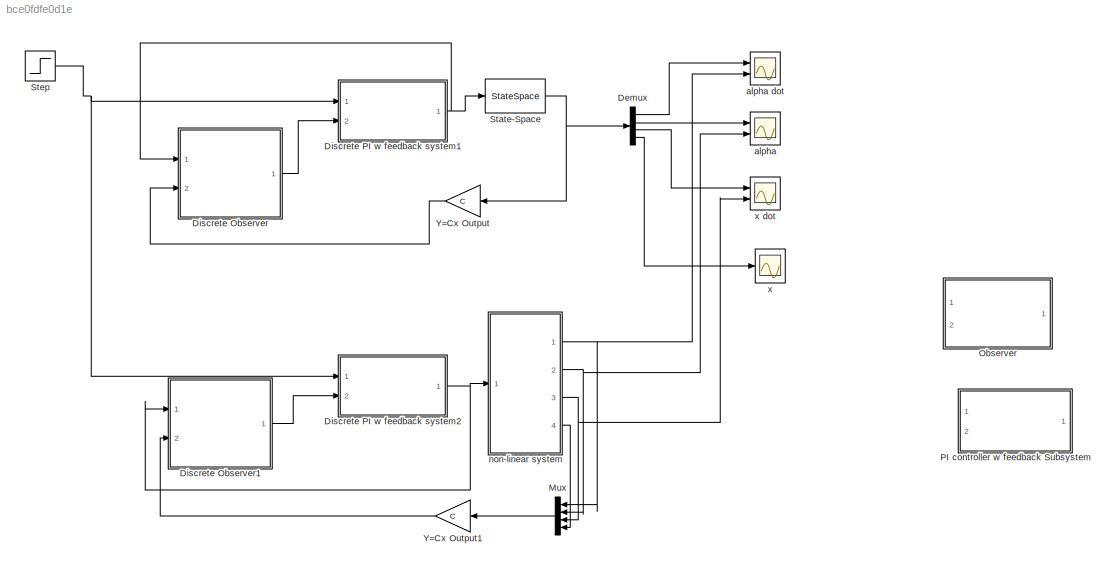
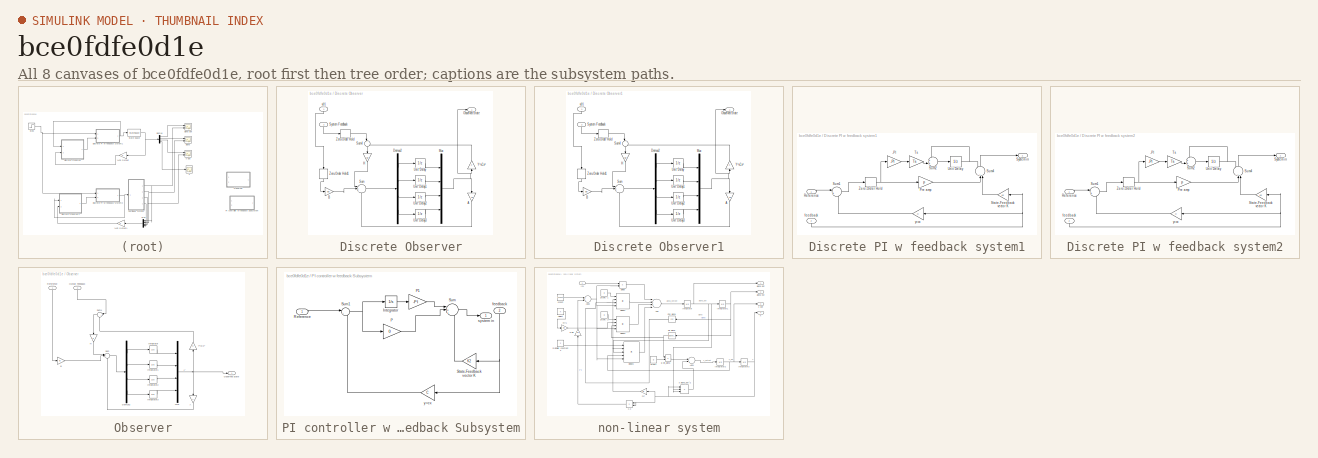
[diagram: thumbnail index - all 8 canvases of the model, root first then tree order]
MODEL slx_bce0fdfe0d1e
KIND model
BLOCK [Demux] Demux
  DisplayOption = bar
  Ports = [1, 4]
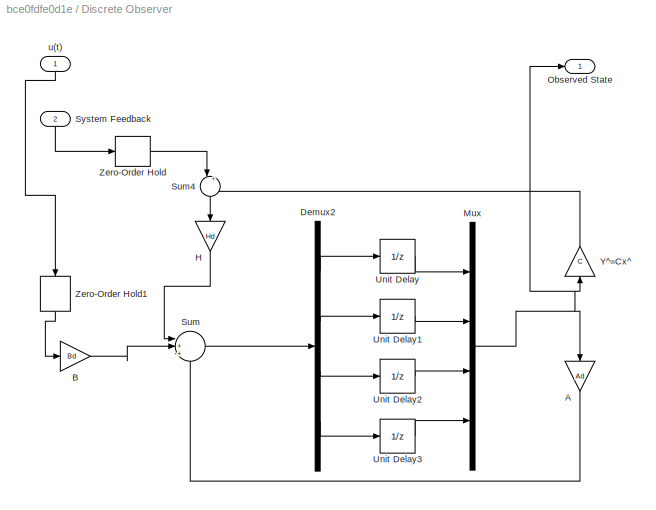
BLOCK [SubSystem] Discrete Observer
  FunctionWithSeparateData = off
  MaskHideContents = off
  MinAlgLoopOccurrences = off
  Opaque = off
  Ports = [2, 1]
  PropExecContextOutsideSubsystem = off
  RTWSystemCode = Auto
  RequestExecContextInheritance = off
BLOCK [Gain] Discrete Observer/A 
  Gain = Ad
  Multiplication = Matrix(K*u)
  OutDataTypeStr = Inherit: Inherit via internal rule
  ParamDataTypeStr = Inherit: Inherit via internal rule
  SaturateOnIntegerOverflow = off
BLOCK [Gain] Discrete Observer/B
  Gain = Bd
  Multiplication = Matrix(K*u) (u vector)
  OutDataTypeStr = Inherit: Inherit via internal rule
  ParamDataTypeStr = Inherit: Inherit via internal rule
  SaturateOnIntegerOverflow = off
BLOCK [Demux] Discrete Observer/Demux2
  DisplayOption = bar
  Ports = [1, 4]
BLOCK [Gain] Discrete Observer/H
  Gain = Hd
  Multiplication = Matrix(K*u) (u vector)
  OutDataTypeStr = Inherit: Inherit via internal rule
  ParamDataTypeStr = Inherit: Inherit via internal rule
  SaturateOnIntegerOverflow = off
BLOCK [Mux] Discrete Observer/Mux
  DisplayOption = bar
  Ports = [4, 1]
BLOCK [Outport] Discrete Observer/Observed State
  IconDisplay = Port number
BLOCK [Sum] Discrete Observer/Sum
  IconShape = round
  InputSameDT = off
  Inputs = |+++
  OutDataTypeStr = Inherit: Inherit via internal rule
  Ports = [3, 1]
  SaturateOnIntegerOverflow = off
BLOCK [Sum] Discrete Observer/Sum4
  IconShape = round
  InputSameDT = off
  Inputs = |+-
  OutDataTypeStr = Inherit: Inherit via internal rule
  Ports = [2, 1]
  SaturateOnIntegerOverflow = off
BLOCK [Inport] Discrete Observer/System Feedback
  IconDisplay = Port number
  Port = 2
BLOCK [UnitDelay] Discrete Observer/Unit Delay
  InputProcessing = Elements as channels (sample based)
  SampleTime = -1
BLOCK [UnitDelay] Discrete Observer/Unit Delay1
  InputProcessing = Elements as channels (sample based)
  SampleTime = -1
BLOCK [UnitDelay] Discrete Observer/Unit Delay2
  InputProcessing = Elements as channels (sample based)
  SampleTime = -1
BLOCK [UnitDelay] Discrete Observer/Unit Delay3
  InputProcessing = Elements as channels (sample based)
  SampleTime = -1
BLOCK [Gain] Discrete Observer/Y^=Cx^
  Gain = C
  Multiplication = Matrix(K*u)
  OutDataTypeStr = Inherit: Inherit via internal rule
  ParamDataTypeStr = Inherit: Inherit via internal rule
  SaturateOnIntegerOverflow = off
BLOCK [ZeroOrderHold] Discrete Observer/Zero-Order Hold
  SampleTime = Ts
BLOCK [ZeroOrderHold] Discrete Observer/Zero-Order Hold1
  SampleTime = Ts
BLOCK [Inport] Discrete Observer/u(t)
  IconDisplay = Port number
BLOCK [SubSystem] Discrete Observer1
  FunctionWithSeparateData = off
  MaskHideContents = off
  MinAlgLoopOccurrences = off
  Opaque = off
  Ports = [2, 1]
  PropExecContextOutsideSubsystem = off
  RTWSystemCode = Auto
  RequestExecContextInheritance = off
BLOCK [Gain] Discrete Observer1/A 
  Gain = Ad
  Multiplication = Matrix(K*u)
  OutDataTypeStr = Inherit: Inherit via internal rule
  ParamDataTypeStr = Inherit: Inherit via internal rule
  SaturateOnIntegerOverflow = off
BLOCK [Gain] Discrete Observer1/B
  Gain = Bd
  Multiplication = Matrix(K*u) (u vector)
  OutDataTypeStr = Inherit: Inherit via internal rule
  ParamDataTypeStr = Inherit: Inherit via internal rule
  SaturateOnIntegerOverflow = off
BLOCK [Demux] Discrete Observer1/Demux2
  DisplayOption = bar
  Ports = [1, 4]
BLOCK [Gain] Discrete Observer1/H
  Gain = Hd
  Multiplication = Matrix(K*u) (u vector)
  OutDataTypeStr = Inherit: Inherit via internal rule
  ParamDataTypeStr = Inherit: Inherit via internal rule
  SaturateOnIntegerOverflow = off
BLOCK [Mux] Discrete Observer1/Mux
  DisplayOption = bar
  Ports = [4, 1]
BLOCK [Outport] Discrete Observer1/Observed State
  IconDisplay = Port number
BLOCK [Sum] Discrete Observer1/Sum
  IconShape = round
  InputSameDT = off
  Inputs = |+++
  OutDataTypeStr = Inherit: Inherit via internal rule
  Ports = [3, 1]
  SaturateOnIntegerOverflow = off
BLOCK [Sum] Discrete Observer1/Sum4
  IconShape = round
  InputSameDT = off
  Inputs = |+-
  OutDataTypeStr = Inherit: Inherit via internal rule
  Ports = [2, 1]
  SaturateOnIntegerOverflow = off
BLOCK [Inport] Discrete Observer1/System Feedback
  IconDisplay = Port number
  Port = 2
BLOCK [UnitDelay] Discrete Observer1/Unit Delay
  InputProcessing = Elements as channels (sample based)
  SampleTime = -1
BLOCK [UnitDelay] Discrete Observer1/Unit Delay1
  InputProcessing = Elements as channels (sample based)
  SampleTime = -1
BLOCK [UnitDelay] Discrete Observer1/Unit Delay2
  InputProcessing = Elements as channels (sample based)
  SampleTime = -1
BLOCK [UnitDelay] Discrete Observer1/Unit Delay3
  InputProcessing = Elements as channels (sample based)
  SampleTime = -1
BLOCK [Gain] Discrete Observer1/Y^=Cx^
  Gain = C
  Multiplication = Matrix(K*u)
  OutDataTypeStr = Inherit: Inherit via internal rule
  ParamDataTypeStr = Inherit: Inherit via internal rule
  SaturateOnIntegerOverflow = off
BLOCK [ZeroOrderHold] Discrete Observer1/Zero-Order Hold
  SampleTime = Ts
BLOCK [ZeroOrderHold] Discrete Observer1/Zero-Order Hold1
  SampleTime = Ts
BLOCK [Inport] Discrete Observer1/u(t)
  IconDisplay = Port number
BLOCK [SubSystem] Discrete PI w feedback system1
  FunctionWithSeparateData = off
  MaskHideContents = off
  MinAlgLoopOccurrences = off
  Opaque = off
  Ports = [2, 1]
  PropExecContextOutsideSubsystem = off
  RTWSystemCode = Auto
  RequestExecContextInheritance = off
BLOCK [Inport] Discrete PI w feedback system1/ feedback
  IconDisplay = Port number
  Port = 2
BLOCK [Gain] Discrete PI w feedback system1/-PI
  Gain = -PI
  Multiplication = Matrix(K*u) (u vector)
  OutDataTypeStr = Inherit: Inherit via internal rule
  ParamDataTypeStr = Inherit: Inherit via internal rule
  SaturateOnIntegerOverflow = off
BLOCK [Gain] Discrete PI w feedback system1/Pre amp
  Gain = p
  Multiplication = Matrix(K*u) (u vector)
  OutDataTypeStr = Inherit: Inherit via internal rule
  ParamDataTypeStr = Inherit: Inherit via internal rule
  SaturateOnIntegerOverflow = off
BLOCK [Inport] Discrete PI w feedback system1/Reference
  IconDisplay = Port number
BLOCK [Gain] Discrete PI w feedback system1/State-Feedback vector K
  Gain = k2
  Multiplication = Matrix(K*u) (u vector)
  OutDataTypeStr = Inherit: Inherit via internal rule
  ParamDataTypeStr = Inherit: Inherit via internal rule
  SaturateOnIntegerOverflow = off
BLOCK [Sum] Discrete PI w feedback system1/Sum1
  IconShape = round
  InputSameDT = off
  Inputs = |+-
  OutDataTypeStr = Inherit: Inherit via internal rule
  Ports = [2, 1]
  SaturateOnIntegerOverflow = off
BLOCK [Sum] Discrete PI w feedback system1/Sum2
  IconShape = round
  InputSameDT = off
  Inputs = ++|
  OutDataTypeStr = Inherit: Inherit via internal rule
  Ports = [2, 1]
  SaturateOnIntegerOverflow = off
BLOCK [Sum] Discrete PI w feedback system1/Sum4
  IconShape = round
  InputSameDT = off
  Inputs = ++-|
  OutDataTypeStr = Inherit: Inherit via internal rule
  Ports = [3, 1]
  SaturateOnIntegerOverflow = off
BLOCK [Outport] Discrete PI w feedback system1/System in
  IconDisplay = Port number
BLOCK [Gain] Discrete PI w feedback system1/Ts
  Gain = Ts
  Multiplication = Matrix(K*u) (u vector)
  OutDataTypeStr = Inherit: Inherit via internal rule
  ParamDataTypeStr = Inherit: Inherit via internal rule
  SaturateOnIntegerOverflow = off
BLOCK [UnitDelay] Discrete PI w feedback system1/Unit Delay
  InputProcessing = Elements as channels (sample based)
  SampleTime = -1
BLOCK [ZeroOrderHold] Discrete PI w feedback system1/Zero-Order Hold
  SampleTime = Ts
BLOCK [Gain] Discrete PI w feedback system1/y=cx
  Gain = C
  Multiplication = Matrix(K*u) (u vector)
  OutDataTypeStr = Inherit: Inherit via internal rule
  ParamDataTypeStr = Inherit: Inherit via internal rule
  SaturateOnIntegerOverflow = off
BLOCK [SubSystem] Discrete PI w feedback system2
  FunctionWithSeparateData = off
  MaskHideContents = off
  MinAlgLoopOccurrences = off
  Opaque = off
  Ports = [2, 1]
  PropExecContextOutsideSubsystem = off
  RTWSystemCode = Auto
  RequestExecContextInheritance = off
BLOCK [Inport] Discrete PI w feedback system2/ feedback
  IconDisplay = Port number
  Port = 2
BLOCK [Gain] Discrete PI w feedback system2/-PI
  Gain = -PI
  Multiplication = Matrix(K*u) (u vector)
  OutDataTypeStr = Inherit: Inherit via internal rule
  ParamDataTypeStr = Inherit: Inherit via internal rule
  SaturateOnIntegerOverflow = off
BLOCK [Gain] Discrete PI w feedback system2/Pre amp
  Gain = p
  Multiplication = Matrix(K*u) (u vector)
  OutDataTypeStr = Inherit: Inherit via internal rule
  ParamDataTypeStr = Inherit: Inherit via internal rule
  SaturateOnIntegerOverflow = off
BLOCK [Inport] Discrete PI w feedback system2/Reference
  IconDisplay = Port number
BLOCK [Gain] Discrete PI w feedback system2/State-Feedback vector K
  Gain = k2
  Multiplication = Matrix(K*u) (u vector)
  OutDataTypeStr = Inherit: Inherit via internal rule
  ParamDataTypeStr = Inherit: Inherit via internal rule
  SaturateOnIntegerOverflow = off
BLOCK [Sum] Discrete PI w feedback system2/Sum1
  IconShape = round
  InputSameDT = off
  Inputs = |+-
  OutDataTypeStr = Inherit: Inherit via internal rule
  Ports = [2, 1]
  SaturateOnIntegerOverflow = off
BLOCK [Sum] Discrete PI w feedback system2/Sum2
  IconShape = round
  InputSameDT = off
  Inputs = ++|
  OutDataTypeStr = Inherit: Inherit via internal rule
  Ports = [2, 1]
  SaturateOnIntegerOverflow = off
BLOCK [Sum] Discrete PI w feedback system2/Sum4
  IconShape = round
  InputSameDT = off
  Inputs = ++-|
  OutDataTypeStr = Inherit: Inherit via internal rule
  Ports = [3, 1]
  SaturateOnIntegerOverflow = off
BLOCK [Outport] Discrete PI w feedback system2/System in
  IconDisplay = Port number
BLOCK [Gain] Discrete PI w feedback system2/Ts
  Gain = Ts
  Multiplication = Matrix(K*u) (u vector)
  OutDataTypeStr = Inherit: Inherit via internal rule
  ParamDataTypeStr = Inherit: Inherit via internal rule
  SaturateOnIntegerOverflow = off
BLOCK [UnitDelay] Discrete PI w feedback system2/Unit Delay
  InputProcessing = Elements as channels (sample based)
  SampleTime = -1
BLOCK [ZeroOrderHold] Discrete PI w feedback system2/Zero-Order Hold
  SampleTime = Ts
BLOCK [Gain] Discrete PI w feedback system2/y=cx
  Gain = C
  Multiplication = Matrix(K*u) (u vector)
  OutDataTypeStr = Inherit: Inherit via internal rule
  ParamDataTypeStr = Inherit: Inherit via internal rule
  SaturateOnIntegerOverflow = off
BLOCK [Mux] Mux
  DisplayOption = bar
  Ports = [4, 1]
BLOCK [SubSystem] Observer
  FunctionWithSeparateData = off
  MaskHideContents = off
  MinAlgLoopOccurrences = off
  Opaque = off
  Ports = [2, 1]
  PropExecContextOutsideSubsystem = off
  RTWSystemCode = Auto
  RequestExecContextInheritance = off
BLOCK [Gain] Observer/A 
  Gain = A
  Multiplication = Matrix(K*u)
  OutDataTypeStr = Inherit: Inherit via internal rule
  ParamDataTypeStr = Inherit: Inherit via internal rule
  SaturateOnIntegerOverflow = off
BLOCK [Gain] Observer/B
  Gain = B
  Multiplication = Matrix(K*u)
  OutDataTypeStr = Inherit: Inherit via internal rule
  ParamDataTypeStr = Inherit: Inherit via internal rule
  SaturateOnIntegerOverflow = off
BLOCK [Demux] Observer/Demux2
  DisplayOption = bar
  Ports = [1, 4]
BLOCK [Gain] Observer/H
  Gain = H
  Multiplication = Matrix(K*u)
  OutDataTypeStr = Inherit: Inherit via internal rule
  ParamDataTypeStr = Inherit: Inherit via internal rule
  SaturateOnIntegerOverflow = off
BLOCK [Integrator] Observer/Integrator
  Ports = [1, 1]
BLOCK [Integrator] Observer/Integrator1
  Ports = [1, 1]
BLOCK [Integrator] Observer/Integrator2
  Ports = [1, 1]
BLOCK [Integrator] Observer/Integrator3
  Ports = [1, 1]
BLOCK [Mux] Observer/Mux
  DisplayOption = bar
  Ports = [4, 1]
BLOCK [Outport] Observer/Observed State
  IconDisplay = Port number
BLOCK [Inport] Observer/Output Feedback
  IconDisplay = Port number
  Port = 2
BLOCK [Inport] Observer/Reference
  IconDisplay = Port number
BLOCK [Sum] Observer/Sum
  IconShape = round
  InputSameDT = off
  Inputs = |+++
  OutDataTypeStr = Inherit: Inherit via internal rule
  Ports = [3, 1]
  SaturateOnIntegerOverflow = off
BLOCK [Sum] Observer/Sum1
  IconShape = round
  InputSameDT = off
  Inputs = |+-
  OutDataTypeStr = Inherit: Inherit via internal rule
  Ports = [2, 1]
  SaturateOnIntegerOverflow = off
BLOCK [Gain] Observer/Y^=Cx^
  Gain = C
  Multiplication = Matrix(K*u)
  OutDataTypeStr = Inherit: Inherit via internal rule
  ParamDataTypeStr = Inherit: Inherit via internal rule
  SaturateOnIntegerOverflow = off
BLOCK [SubSystem] PI controller w feedback Subsystem
  FunctionWithSeparateData = off
  MaskHideContents = off
  MinAlgLoopOccurrences = off
  Opaque = off
  Ports = [2, 1]
  PropExecContextOutsideSubsystem = off
  RTWSystemCode = Auto
  RequestExecContextInheritance = off
BLOCK [Integrator] PI controller w feedback Subsystem/Integrator
  Ports = [1, 1]
BLOCK [Gain] PI controller w feedback Subsystem/P
  Gain = 0
  Multiplication = Matrix(K*u) (u vector)
  OutDataTypeStr = Inherit: Inherit via internal rule
  ParamDataTypeStr = Inherit: Inherit via internal rule
  SaturateOnIntegerOverflow = off
BLOCK [Gain] PI controller w feedback Subsystem/P1
  Gain = -PI
  Multiplication = Matrix(K*u) (u vector)
  OutDataTypeStr = Inherit: Inherit via internal rule
  ParamDataTypeStr = Inherit: Inherit via internal rule
  SaturateOnIntegerOverflow = off
BLOCK [Inport] PI controller w feedback Subsystem/Reference
  IconDisplay = Port number
BLOCK [Gain] PI controller w feedback Subsystem/State-Feedback vector K
  Gain = K2
  Multiplication = Matrix(K*u) (u vector)
  OutDataTypeStr = Inherit: Inherit via internal rule
  ParamDataTypeStr = Inherit: Inherit via internal rule
  SaturateOnIntegerOverflow = off
BLOCK [Sum] PI controller w feedback Subsystem/Sum
  IconShape = round
  InputSameDT = off
  Inputs = |++-
  OutDataTypeStr = Inherit: Inherit via internal rule
  Ports = [3, 1]
  SaturateOnIntegerOverflow = off
BLOCK [Sum] PI controller w feedback Subsystem/Sum1
  IconShape = round
  InputSameDT = off
  Inputs = |+-
  OutDataTypeStr = Inherit: Inherit via internal rule
  Ports = [2, 1]
  SaturateOnIntegerOverflow = off
BLOCK [Inport] PI controller w feedback Subsystem/feedback 
  IconDisplay = Port number
  Port = 2
BLOCK [Outport] PI controller w feedback Subsystem/system in
  IconDisplay = Port number
BLOCK [Gain] PI controller w feedback Subsystem/y=cx
  Gain = C
  Multiplication = Matrix(K*u) (u vector)
  OutDataTypeStr = Inherit: Inherit via internal rule
  ParamDataTypeStr = Inherit: Inherit via internal rule
  SaturateOnIntegerOverflow = off
BLOCK [StateSpace] State-Space
  A = A
  B = B
  C = c
  D = D
  X0 = [0;0;0;0.05]
BLOCK [Step] Step
  SampleTime = 0
BLOCK [Gain] Y=Cx Output
  Gain = C
  Multiplication = Matrix(K*u)
  OutDataTypeStr = Inherit: Inherit via internal rule
  ParamDataTypeStr = Inherit: Inherit via internal rule
  SaturateOnIntegerOverflow = off
BLOCK [Gain] Y=Cx Output1
  Gain = C
  Multiplication = Matrix(K*u)
  OutDataTypeStr = Inherit: Inherit via internal rule
  ParamDataTypeStr = Inherit: Inherit via internal rule
  SaturateOnIntegerOverflow = off
BLOCK [Scope] alpha
  DataFormat = StructureWithTime
  Floating = off
  LimitDataPoints = off
  NumInputPorts = 2
  Ports = [2]
  SampleTime = 0
  SaveName = alphalin
  SaveToWorkspace = on
  ShowLegends = off
  YMax = 5~5
  YMin = -5~-5
BLOCK [Scope] alpha dot
  DataFormat = StructureWithTime
  Floating = off
  LimitDataPoints = off
  NumInputPorts = 2
  Ports = [2]
  SampleTime = 0
  SaveName = adotlin
  SaveToWorkspace = on
  ShowLegends = off
  TimeRange = 10
  YMax = 5~5
  YMin = -5~-5
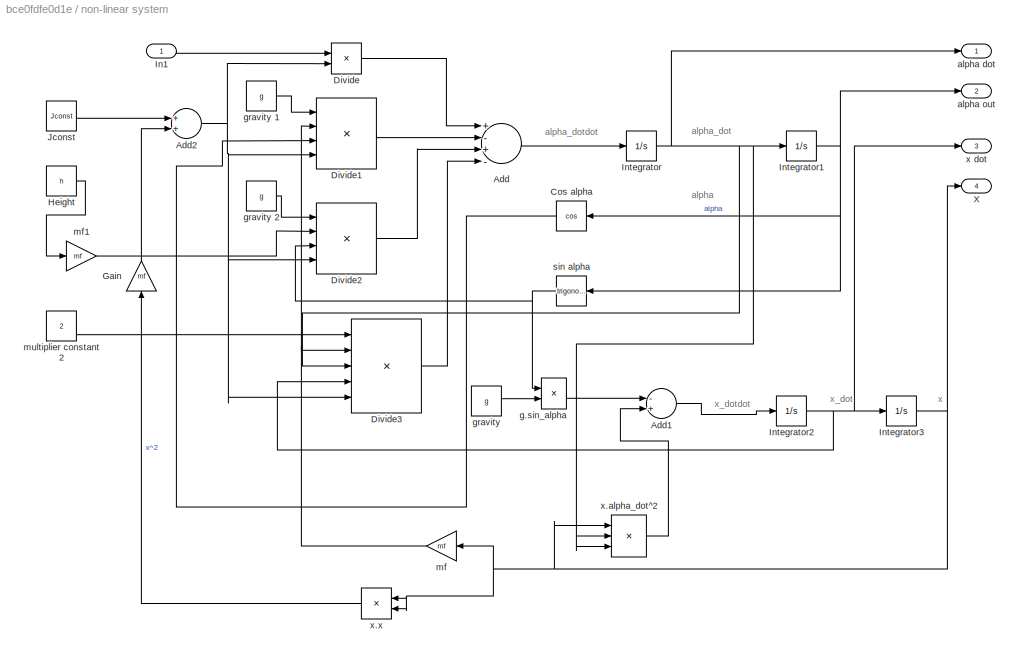
BLOCK [SubSystem] non-linear system
  FunctionWithSeparateData = off
  MaskHideContents = off
  MinAlgLoopOccurrences = off
  Opaque = off
  Ports = [1, 4]
  PropExecContextOutsideSubsystem = off
  RTWSystemCode = Auto
  RequestExecContextInheritance = off
BLOCK [Sum] non-linear system/Add
  InputSameDT = off
  Inputs = +-+-
  OutDataTypeStr = Inherit: Inherit via internal rule
  Ports = [4, 1]
  SaturateOnIntegerOverflow = off
BLOCK [Sum] non-linear system/Add1
  InputSameDT = off
  Inputs = -+
  OutDataTypeStr = Inherit: Inherit via internal rule
  Ports = [2, 1]
  SaturateOnIntegerOverflow = off
BLOCK [Sum] non-linear system/Add2
  InputSameDT = off
  OutDataTypeStr = Inherit: Inherit via internal rule
  Ports = [2, 1]
  SaturateOnIntegerOverflow = off
BLOCK [Trigonometry] non-linear system/Cos alpha
  Operator = cos
  Ports = [1, 1]
BLOCK [Product] non-linear system/Divide
  InputSameDT = off
  Inputs = */
  OutDataTypeStr = Inherit: Inherit via internal rule
  Ports = [2, 1]
  RndMeth = Floor
  SaturateOnIntegerOverflow = off
BLOCK [Product] non-linear system/Divide1
  InputSameDT = off
  Inputs = ***/
  OutDataTypeStr = Inherit: Inherit via internal rule
  Ports = [4, 1]
  RndMeth = Floor
  SaturateOnIntegerOverflow = off
BLOCK [Product] non-linear system/Divide2
  InputSameDT = off
  Inputs = ***/
  OutDataTypeStr = Inherit: Inherit via internal rule
  Ports = [4, 1]
  RndMeth = Floor
  SaturateOnIntegerOverflow = off
BLOCK [Product] non-linear system/Divide3
  InputSameDT = off
  Inputs = ****/
  OutDataTypeStr = Inherit: Inherit via internal rule
  Ports = [5, 1]
  RndMeth = Floor
  SaturateOnIntegerOverflow = off
BLOCK [Gain] non-linear system/Gain
  Gain = mf
  OutDataTypeStr = Inherit: Inherit via internal rule
  ParamDataTypeStr = Inherit: Inherit via internal rule
  SaturateOnIntegerOverflow = off
BLOCK [Constant] non-linear system/Height
  Value = h
BLOCK [Inport] non-linear system/In1
  IconDisplay = Port number
BLOCK [Integrator] non-linear system/Integrator
  Ports = [1, 1]
BLOCK [Integrator] non-linear system/Integrator1
  Ports = [1, 1]
BLOCK [Integrator] non-linear system/Integrator2
  Ports = [1, 1]
BLOCK [Integrator] non-linear system/Integrator3
  Ports = [1, 1]
BLOCK [Constant] non-linear system/Jconst 
  Value = Jconst
BLOCK [Outport] non-linear system/X 
  IconDisplay = Port number
  Port = 4
BLOCK [Outport] non-linear system/alpha dot
  IconDisplay = Port number
BLOCK [Outport] non-linear system/alpha out
  IconDisplay = Port number
  Port = 2
BLOCK [Product] non-linear system/g.sin_alpha
  InputSameDT = off
  Inputs = **
  OutDataTypeStr = Inherit: Inherit via internal rule
  Ports = [2, 1]
  RndMeth = Floor
  SaturateOnIntegerOverflow = off
BLOCK [Constant] non-linear system/gravity 
  Value = g
BLOCK [Constant] non-linear system/gravity 1
  Value = g
BLOCK [Constant] non-linear system/gravity 2
  Value = g
BLOCK [Gain] non-linear system/mf
  Gain = mf
  OutDataTypeStr = Inherit: Inherit via internal rule
  ParamDataTypeStr = Inherit: Inherit via internal rule
  SaturateOnIntegerOverflow = off
BLOCK [Gain] non-linear system/mf1
  Gain = mf
  OutDataTypeStr = Inherit: Inherit via internal rule
  ParamDataTypeStr = Inherit: Inherit via internal rule
  SaturateOnIntegerOverflow = off
BLOCK [Constant] non-linear system/multiplier constant 2
  Value = 2
BLOCK [Trigonometry] non-linear system/sin alpha
  Ports = [1, 1]
BLOCK [Outport] non-linear system/x dot
  IconDisplay = Port number
  Port = 3
BLOCK [Product] non-linear system/x.alpha_dot^2
  InputSameDT = off
  Inputs = ***
  OutDataTypeStr = Inherit: Inherit via internal rule
  Ports = [3, 1]
  RndMeth = Floor
  SaturateOnIntegerOverflow = off
BLOCK [Product] non-linear system/x.x
  InputSameDT = off
  Inputs = **
  OutDataTypeStr = Inherit: Inherit via internal rule
  Ports = [2, 1]
  RndMeth = Floor
  SaturateOnIntegerOverflow = off
BLOCK [Scope] x
  DataFormat = StructureWithTime
  Floating = off
  LimitDataPoints = off
  NumInputPorts = 1
  Ports = [1]
  SampleTime = 0
  SaveName = xlin
  SaveToWorkspace = on
  ShowLegends = off
BLOCK [Scope] x dot
  DataFormat = StructureWithTime
  Floating = off
  LimitDataPoints = off
  NumInputPorts = 2
  Ports = [2]
  SampleTime = 0
  SaveName = xdotlin
  SaveToWorkspace = on
  ShowLegends = off
  YMax = 5~5
  YMin = -5~-5
ANNOTATION Observer: x^
ANNOTATION non-linear system: alpha
ANNOTATION non-linear system: alpha_dot
ANNOTATION non-linear system: alpha_dotdot
ANNOTATION non-linear system: x
ANNOTATION non-linear system: x_dot
ANNOTATION non-linear system: x_dotdot
LINE Demux:1 -> alpha dot:1
LINE Demux:2 -> alpha:1
LINE Demux:3 -> x dot:1
LINE Demux:4 -> x:1
LINE Discrete Observer/A :1 -> Discrete Observer/Sum:3
LINE Discrete Observer/B:1 -> Discrete Observer/Sum:2
LINE Discrete Observer/Demux2:1 -> Discrete Observer/Unit Delay:1
LINE Discrete Observer/Demux2:2 -> Discrete Observer/Unit Delay1:1
LINE Discrete Observer/Demux2:3 -> Discrete Observer/Unit Delay2:1
LINE Discrete Observer/Demux2:4 -> Discrete Observer/Unit Delay3:1
LINE Discrete Observer/H:1 -> Discrete Observer/Sum:1
NET Discrete Observer/Mux:1 -> Discrete Observer/A :1, Discrete Observer/Observed State:1, Discrete Observer/Y^=Cx^:1
LINE Discrete Observer/Sum4:1 -> Discrete Observer/H:1
LINE Discrete Observer/Sum:1 -> Discrete Observer/Demux2:1
LINE Discrete Observer/System Feedback:1 -> Discrete Observer/Zero-Order Hold:1
LINE Discrete Observer/Unit Delay1:1 -> Discrete Observer/Mux:2
LINE Discrete Observer/Unit Delay2:1 -> Discrete Observer/Mux:3
LINE Discrete Observer/Unit Delay3:1 -> Discrete Observer/Mux:4
LINE Discrete Observer/Unit Delay:1 -> Discrete Observer/Mux:1
LINE Discrete Observer/Y^=Cx^:1 -> Discrete Observer/Sum4:2
LINE Discrete Observer/Zero-Order Hold1:1 -> Discrete Observer/B:1
LINE Discrete Observer/Zero-Order Hold:1 -> Discrete Observer/Sum4:1
LINE Discrete Observer/u(t):1 -> Discrete Observer/Zero-Order Hold1:1
LINE Discrete Observer1/A :1 -> Discrete Observer1/Sum:3
LINE Discrete Observer1/B:1 -> Discrete Observer1/Sum:2
LINE Discrete Observer1/Demux2:1 -> Discrete Observer1/Unit Delay:1
LINE Discrete Observer1/Demux2:2 -> Discrete Observer1/Unit Delay1:1
LINE Discrete Observer1/Demux2:3 -> Discrete Observer1/Unit Delay2:1
LINE Discrete Observer1/Demux2:4 -> Discrete Observer1/Unit Delay3:1
LINE Discrete Observer1/H:1 -> Discrete Observer1/Sum:1
NET Discrete Observer1/Mux:1 -> Discrete Observer1/A :1, Discrete Observer1/Observed State:1, Discrete Observer1/Y^=Cx^:1
LINE Discrete Observer1/Sum4:1 -> Discrete Observer1/H:1
LINE Discrete Observer1/Sum:1 -> Discrete Observer1/Demux2:1
LINE Discrete Observer1/System Feedback:1 -> Discrete Observer1/Zero-Order Hold:1
LINE Discrete Observer1/Unit Delay1:1 -> Discrete Observer1/Mux:2
LINE Discrete Observer1/Unit Delay2:1 -> Discrete Observer1/Mux:3
LINE Discrete Observer1/Unit Delay3:1 -> Discrete Observer1/Mux:4
LINE Discrete Observer1/Unit Delay:1 -> Discrete Observer1/Mux:1
LINE Discrete Observer1/Y^=Cx^:1 -> Discrete Observer1/Sum4:2
LINE Discrete Observer1/Zero-Order Hold1:1 -> Discrete Observer1/B:1
LINE Discrete Observer1/Zero-Order Hold:1 -> Discrete Observer1/Sum4:1
LINE Discrete Observer1/u(t):1 -> Discrete Observer1/Zero-Order Hold1:1
LINE Discrete Observer1:1 -> Discrete PI w feedback system2:2
LINE Discrete Observer:1 -> Discrete PI w feedback system1:2
NET Discrete PI w feedback system1/ feedback:1 -> Discrete PI w feedback system1/State-Feedback vector K:1, Discrete PI w feedback system1/y=cx:1
LINE Discrete PI w feedback system1/-PI:1 -> Discrete PI w feedback system1/Ts:1
LINE Discrete PI w feedback system1/Pre amp:1 -> Discrete PI w feedback system1/Sum4:2
LINE Discrete PI w feedback system1/Reference:1 -> Discrete PI w feedback system1/Sum1:1
LINE Discrete PI w feedback system1/State-Feedback vector K:1 -> Discrete PI w feedback system1/Sum4:3
LINE Discrete PI w feedback system1/Sum1:1 -> Discrete PI w feedback system1/Zero-Order Hold:1
LINE Discrete PI w feedback system1/Sum2:1 -> Discrete PI w feedback system1/Unit Delay:1
LINE Discrete PI w feedback system1/Sum4:1 -> Discrete PI w feedback system1/System in:1
LINE Discrete PI w feedback system1/Ts:1 -> Discrete PI w feedback system1/Sum2:2
NET Discrete PI w feedback system1/Unit Delay:1 -> Discrete PI w feedback system1/Sum2:1, Discrete PI w feedback system1/Sum4:1
NET Discrete PI w feedback system1/Zero-Order Hold:1 -> Discrete PI w feedback system1/-PI:1, Discrete PI w feedback system1/Pre amp:1
LINE Discrete PI w feedback system1/y=cx:1 -> Discrete PI w feedback system1/Sum1:2
NET Discrete PI w feedback system1:1 -> Discrete Observer:1, State-Space:1
NET Discrete PI w feedback system2/ feedback:1 -> Discrete PI w feedback system2/State-Feedback vector K:1, Discrete PI w feedback system2/y=cx:1
LINE Discrete PI w feedback system2/-PI:1 -> Discrete PI w feedback system2/Ts:1
LINE Discrete PI w feedback system2/Pre amp:1 -> Discrete PI w feedback system2/Sum4:2
LINE Discrete PI w feedback system2/Reference:1 -> Discrete PI w feedback system2/Sum1:1
LINE Discrete PI w feedback system2/State-Feedback vector K:1 -> Discrete PI w feedback system2/Sum4:3
LINE Discrete PI w feedback system2/Sum1:1 -> Discrete PI w feedback system2/Zero-Order Hold:1
LINE Discrete PI w feedback system2/Sum2:1 -> Discrete PI w feedback system2/Unit Delay:1
LINE Discrete PI w feedback system2/Sum4:1 -> Discrete PI w feedback system2/System in:1
LINE Discrete PI w feedback system2/Ts:1 -> Discrete PI w feedback system2/Sum2:2
NET Discrete PI w feedback system2/Unit Delay:1 -> Discrete PI w feedback system2/Sum2:1, Discrete PI w feedback system2/Sum4:1
NET Discrete PI w feedback system2/Zero-Order Hold:1 -> Discrete PI w feedback system2/-PI:1, Discrete PI w feedback system2/Pre amp:1
LINE Discrete PI w feedback system2/y=cx:1 -> Discrete PI w feedback system2/Sum1:2
NET Discrete PI w feedback system2:1 -> Discrete Observer1:1, non-linear system:1
LINE Mux:1 -> Y=Cx Output1:1
LINE Observer/A :1 -> Observer/Sum:3
LINE Observer/B:1 -> Observer/Sum:2
LINE Observer/Demux2:1 -> Observer/Integrator:1
LINE Observer/Demux2:2 -> Observer/Integrator1:1
LINE Observer/Demux2:3 -> Observer/Integrator2:1
LINE Observer/Demux2:4 -> Observer/Integrator3:1
LINE Observer/H:1 -> Observer/Sum:1
LINE Observer/Integrator1:1 -> Observer/Mux:2
LINE Observer/Integrator2:1 -> Observer/Mux:3
LINE Observer/Integrator3:1 -> Observer/Mux:4
LINE Observer/Integrator:1 -> Observer/Mux:1
NET Observer/Mux:1 -> Observer/A :1, Observer/Observed State:1, Observer/Y^=Cx^:1
LINE Observer/Output Feedback:1 -> Observer/Sum1:1
LINE Observer/Reference:1 -> Observer/B:1
LINE Observer/Sum1:1 -> Observer/H:1
LINE Observer/Sum:1 -> Observer/Demux2:1
LINE Observer/Y^=Cx^:1 -> Observer/Sum1:2
LINE PI controller w feedback Subsystem/Integrator:1 -> PI controller w feedback Subsystem/P1:1
LINE PI controller w feedback Subsystem/P1:1 -> PI controller w feedback Subsystem/Sum:1
LINE PI controller w feedback Subsystem/P:1 -> PI controller w feedback Subsystem/Sum:2
LINE PI controller w feedback Subsystem/Reference:1 -> PI controller w feedback Subsystem/Sum1:1
LINE PI controller w feedback Subsystem/State-Feedback vector K:1 -> PI controller w feedback Subsystem/Sum:3
NET PI controller w feedback Subsystem/Sum1:1 -> PI controller w feedback Subsystem/Integrator:1, PI controller w feedback Subsystem/P:1
LINE PI controller w feedback Subsystem/Sum:1 -> PI controller w feedback Subsystem/system in:1
NET PI controller w feedback Subsystem/feedback :1 -> PI controller w feedback Subsystem/State-Feedback vector K:1, PI controller w feedback Subsystem/y=cx:1
LINE PI controller w feedback Subsystem/y=cx:1 -> PI controller w feedback Subsystem/Sum1:2
NET State-Space:1 -> Demux:1, Y=Cx Output:1
NET Step:1 -> Discrete PI w feedback system1:1, Discrete PI w feedback system2:1
LINE Y=Cx Output1:1 -> Discrete Observer1:2
LINE Y=Cx Output:1 -> Discrete Observer:2
LINE non-linear system/Add1:1 -> non-linear system/Integrator2:1
NET non-linear system/Add2:1 -> non-linear system/Divide1:4, non-linear system/Divide2:4, non-linear system/Divide3:5, non-linear system/Divide:2
LINE non-linear system/Add:1 -> non-linear system/Integrator:1
LINE non-linear system/Cos alpha:1 -> non-linear system/Divide1:3
LINE non-linear system/Divide1:1 -> non-linear system/Add:2
LINE non-linear system/Divide2:1 -> non-linear system/Add:3
LINE non-linear system/Divide3:1 -> non-linear system/Add:4
LINE non-linear system/Divide:1 -> non-linear system/Add:1
LINE non-linear system/Gain:1 -> non-linear system/Add2:2
LINE non-linear system/Height:1 -> non-linear system/mf1:1
LINE non-linear system/In1:1 -> non-linear system/Divide:1
NET non-linear system/Integrator1:1 -> non-linear system/Cos alpha:1, non-linear system/alpha out:1, non-linear system/sin alpha:1
NET non-linear system/Integrator2:1 -> non-linear system/Divide3:4, non-linear system/Integrator3:1, non-linear system/x dot:1
NET non-linear system/Integrator3:1 -> non-linear system/X :1, non-linear system/mf:1, non-linear system/x.alpha_dot^2:1, non-linear system/x.x:1, non-linear system/x.x:2
NET non-linear system/Integrator:1 -> non-linear system/Divide3:3, non-linear system/Integrator1:1, non-linear system/alpha dot:1, non-linear system/x.alpha_dot^2:2, non-linear system/x.alpha_dot^2:3
LINE non-linear system/Jconst :1 -> non-linear system/Add2:1
LINE non-linear system/g.sin_alpha:1 -> non-linear system/Add1:1
LINE non-linear system/gravity 1:1 -> non-linear system/Divide1:1
LINE non-linear system/gravity 2:1 -> non-linear system/Divide2:1
LINE non-linear system/gravity :1 -> non-linear system/g.sin_alpha:2
LINE non-linear system/mf1:1 -> non-linear system/Divide2:2
NET non-linear system/mf:1 -> non-linear system/Divide1:2, non-linear system/Divide3:2
LINE non-linear system/multiplier constant 2:1 -> non-linear system/Divide3:1
NET non-linear system/sin alpha:1 -> non-linear system/Divide2:3, non-linear system/g.sin_alpha:1
LINE non-linear system/x.alpha_dot^2:1 -> non-linear system/Add1:2
LINE non-linear system/x.x:1 -> non-linear system/Gain:1
NET non-linear system:1 -> Mux:1, alpha dot:2
NET non-linear system:2 -> Mux:2, alpha:2
NET non-linear system:3 -> Mux:3, x dot:2
LINE non-linear system:4 -> Mux:4
note: NET lines group one-source signal fan-out (src -> all destinations, sorted); 1:1 wires keep LINE
